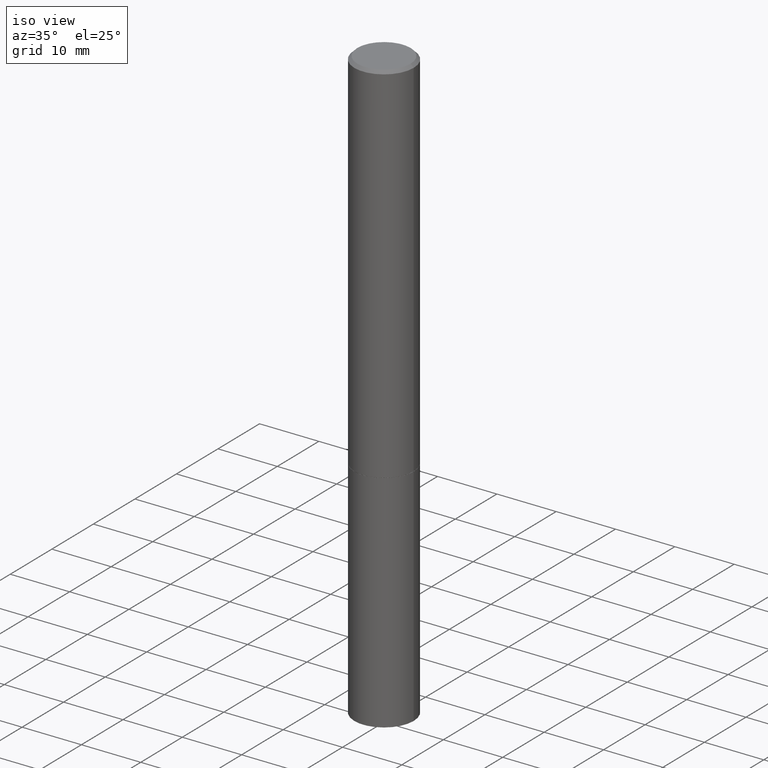
[diagram: clean part render]
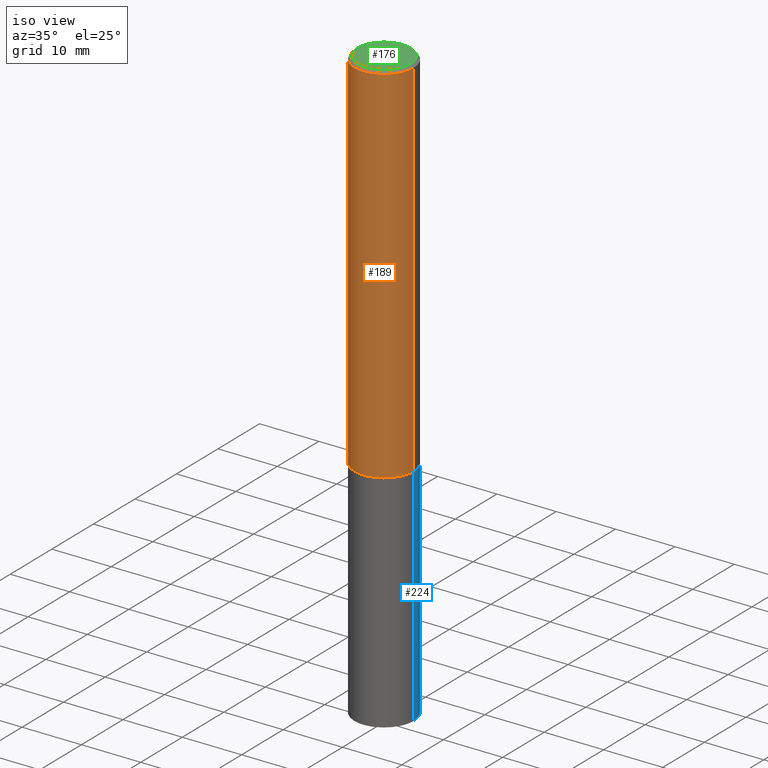
[diagram: same view with three faces highlighted in distinct colors, each labeled with its STEP entity id]
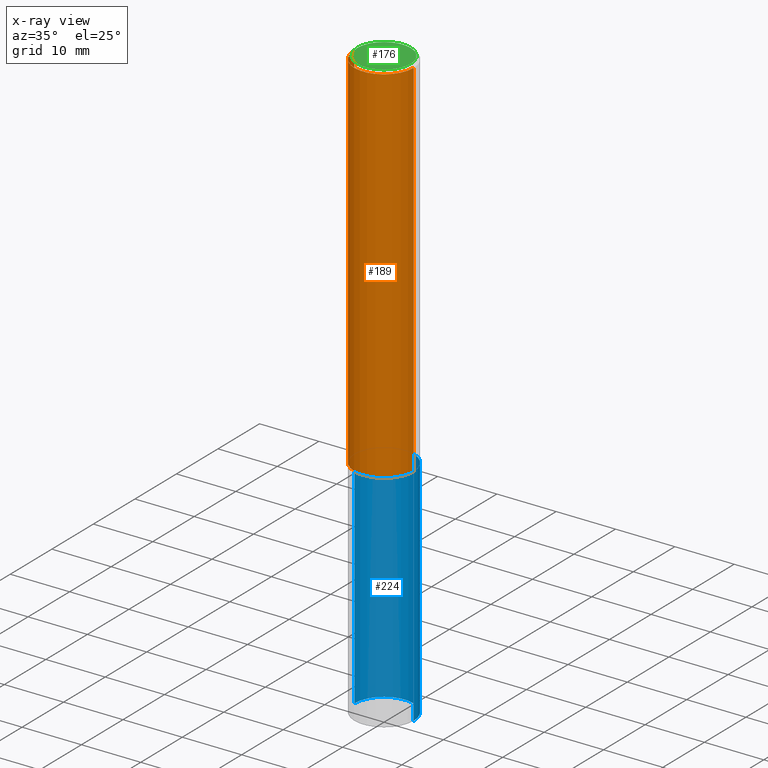
[diagram: x-ray of the same camera — body ghosted, the three highlighted faces saturated]
A machine part, iso view with three faces highlighted in distinct colors.
The next image is the same camera in x-ray (body ghosted, the three faces saturated) — at least one of them is partly hidden behind the body in this view.
Their STEP definitions:

[orange] entity #189 — the highlighted cylindrical surface (edge-blend (fillet) strip) has radius 5 mm, axis along (-0, 0, 1).
#4 = VERTEX_POINT ( 'NONE', #305 ) ;
#5 = EDGE_CURVE ( 'NONE', #160, #4, #47, .T. ) ;
#13 = ORIENTED_EDGE ( 'NONE', *, *, #5, .F. ) ;
#14 = CARTESIAN_POINT ( 'NONE',  ( -0.1968500000000000527, -2.895644097366364896E-15, -2.439899999999999736 ) ) ;
#21 = ORIENTED_EDGE ( 'NONE', *, *, #349, .T. ) ;
#38 = CARTESIAN_POINT ( 'NONE',  ( 4.890937612370278413E-31, -6.982962677686297772E-17, -0.02000000000000002123 ) ) ;
#47 = LINE ( 'NONE', #246, #281 ) ;
#57 = VERTEX_POINT ( 'NONE', #302 ) ;
#65 = DIRECTION ( 'NONE',  ( -2.445468806185136597E-29, 3.491481338843145583E-15, 1.000000000000000000 ) ) ;
#66 = ORIENTED_EDGE ( 'NONE', *, *, #127, .T. ) ;
#112 = AXIS2_PLACEMENT_3D ( 'NONE', #361, #165, #252 ) ;
#113 = VECTOR ( 'NONE', #245, 39.37007874015748143 ) ;
#114 = EDGE_CURVE ( 'NONE', #4, #57, #237, .T. ) ;
#123 = ORIENTED_EDGE ( 'NONE', *, *, #114, .F. ) ;
#127 = EDGE_CURVE ( 'NONE', #160, #287, #226, .T. ) ;
#140 = CARTESIAN_POINT ( 'NONE',  ( 0.1968499999999998307, -1.374596203102540425E-15, 9.598753983154291049E-30 ) ) ;
#160 = VERTEX_POINT ( 'NONE', #14 ) ;
#165 = DIRECTION ( 'NONE',  ( -2.445468806185136597E-29, 3.491481338843145583E-15, 1.000000000000000000 ) ) ;
#182 = AXIS2_PLACEMENT_3D ( 'NONE', #318, #65, #263 ) ;
#189 = ADVANCED_FACE ( 'NONE', ( #312 ), #219, .T. ) ;
#192 = CARTESIAN_POINT ( 'NONE',  ( 0.1968500000000000527, -9.893461521745931567E-15, -2.439899999999999736 ) ) ;
#202 = DIRECTION ( 'NONE',  ( 1.000000000000000000, -6.982962677686266711E-15, 0.000000000000000000 ) ) ;
#205 = AXIS2_PLACEMENT_3D ( 'NONE', #38, #356, #202 ) ;
#219 = CYLINDRICAL_SURFACE ( 'NONE', #112, 0.1968499999999998307 ) ;
#226 = CIRCLE ( 'NONE', #182, 0.1968500000000000527 ) ;
#237 = CIRCLE ( 'NONE', #205, 0.1968499999999996364 ) ;
#245 = DIRECTION ( 'NONE',  ( -2.445468806185136877E-29, 3.491481338843145188E-15, 1.000000000000000000 ) ) ;
#246 = CARTESIAN_POINT ( 'NONE',  ( -0.1968499999999998307, 1.398703375343756013E-15, -9.682923725166775270E-30 ) ) ;
#252 = DIRECTION ( 'NONE',  ( 1.000000000000000000, -6.982962677686266711E-15, 4.876176775795935793E-29 ) ) ;
#263 = DIRECTION ( 'NONE',  ( 1.000000000000000000, -6.982962677686266711E-15, 0.000000000000000000 ) ) ;
#281 = VECTOR ( 'NONE', #359, 39.37007874015748143 ) ;
#287 = VERTEX_POINT ( 'NONE', #192 ) ;
#302 = CARTESIAN_POINT ( 'NONE',  ( 0.1968499999999996364, -1.420318657638186558E-15, -0.02000000000000002123 ) ) ;
#305 = CARTESIAN_POINT ( 'NONE',  ( -0.1968499999999996364, 1.304766576325675944E-15, -0.02000000000000002123 ) ) ;
#312 = FACE_OUTER_BOUND ( 'NONE', #343, .T. ) ;
#318 = CARTESIAN_POINT ( 'NONE',  ( 5.966699340211114556E-29, -8.518865318643389958E-15, -2.439899999999999736 ) ) ;
#343 = EDGE_LOOP ( 'NONE', ( #13, #66, #21, #123 ) ) ;
#349 = EDGE_CURVE ( 'NONE', #287, #57, #358, .T. ) ;
#356 = DIRECTION ( 'NONE',  ( -2.445468806185136597E-29, 3.491481338843145583E-15, 1.000000000000000000 ) ) ;
#358 = LINE ( 'NONE', #140, #113 ) ;
#359 = DIRECTION ( 'NONE',  ( -2.445468806185136877E-29, 3.491481338843145188E-15, 1.000000000000000000 ) ) ;
#361 = CARTESIAN_POINT ( 'NONE',  ( 0.000000000000000000, 0.000000000000000000, 0.000000000000000000 ) ) ;

[blue] entity #224 — the highlighted cylindrical surface (edge-blend (fillet) strip) has radius 5 mm, axis along (-0, 0, 1).
#6 = CARTESIAN_POINT ( 'NONE',  ( 0.1968500000000000250, -1.512055823412800660E-14, -3.937000000000000277 ) ) ;
#33 = VERTEX_POINT ( 'NONE', #357 ) ;
#42 = LINE ( 'NONE', #348, #365 ) ;
#45 = EDGE_CURVE ( 'NONE', #72, #33, #107, .T. ) ;
#58 = EDGE_CURVE ( 'NONE', #156, #262, #42, .T. ) ;
#72 = VERTEX_POINT ( 'NONE', #6 ) ;
#77 = DIRECTION ( 'NONE',  ( -2.445468806185136877E-29, 3.491481338843145188E-15, 1.000000000000000000 ) ) ;
#81 = CARTESIAN_POINT ( 'NONE',  ( -0.1968500000000000250, -9.735456040160091980E-15, -2.440900000000000070 ) ) ;
#88 = EDGE_CURVE ( 'NONE', #72, #156, #137, .T. ) ;
#93 = DIRECTION ( 'NONE',  ( 1.000000000000000000, -6.982962677686267499E-15, 0.000000000000000000 ) ) ;
#107 = LINE ( 'NONE', #218, #258 ) ;
#132 = ORIENTED_EDGE ( 'NONE', *, *, #266, .F. ) ;
#137 = CIRCLE ( 'NONE', #199, 0.1968500000000000250 ) ;
#139 = AXIS2_PLACEMENT_3D ( 'NONE', #334, #363, #338 ) ;
#141 = EDGE_LOOP ( 'NONE', ( #213, #297, #132, #148 ) ) ;
#148 = ORIENTED_EDGE ( 'NONE', *, *, #45, .F. ) ;
#156 = VERTEX_POINT ( 'NONE', #353 ) ;
#169 = CYLINDRICAL_SURFACE ( 'NONE', #139, 0.1968500000000000250 ) ;
#191 = CIRCLE ( 'NONE', #301, 0.1968500000000000250 ) ;
#199 = AXIS2_PLACEMENT_3D ( 'NONE', #293, #232, #93 ) ;
#203 = DIRECTION ( 'NONE',  ( -2.445468806185136877E-29, 3.491481338843145188E-15, 1.000000000000000000 ) ) ;
#213 = ORIENTED_EDGE ( 'NONE', *, *, #88, .T. ) ;
#218 = CARTESIAN_POINT ( 'NONE',  ( 0.1968500000000000250, -1.374596203102541608E-15, 9.598753983154300858E-30 ) ) ;
#223 = CARTESIAN_POINT ( 'NONE',  ( 5.969144809017299038E-29, -8.522356799982232966E-15, -2.440900000000000070 ) ) ;
#224 = ADVANCED_FACE ( 'NONE', ( #272 ), #169, .T. ) ;
#232 = DIRECTION ( 'NONE',  ( -2.445468806185136597E-29, 3.491481338843145583E-15, 1.000000000000000000 ) ) ;
#258 = VECTOR ( 'NONE', #77, 39.37007874015748143 ) ;
#262 = VERTEX_POINT ( 'NONE', #81 ) ;
#266 = EDGE_CURVE ( 'NONE', #33, #262, #191, .T. ) ;
#272 = FACE_OUTER_BOUND ( 'NONE', #141, .T. ) ;
#283 = DIRECTION ( 'NONE',  ( -2.445468806185136597E-29, 3.491481338843145583E-15, 1.000000000000000000 ) ) ;
#293 = CARTESIAN_POINT ( 'NONE',  ( 9.627810689950883669E-29, -1.374596203102546341E-14, -3.937000000000000277 ) ) ;
#297 = ORIENTED_EDGE ( 'NONE', *, *, #58, .T. ) ;
#301 = AXIS2_PLACEMENT_3D ( 'NONE', #223, #283, #304 ) ;
#304 = DIRECTION ( 'NONE',  ( 1.000000000000000000, -6.982962677686262766E-15, 0.000000000000000000 ) ) ;
#334 = CARTESIAN_POINT ( 'NONE',  ( 0.000000000000000000, 0.000000000000000000, 0.000000000000000000 ) ) ;
#338 = DIRECTION ( 'NONE',  ( 1.000000000000000000, -6.982962677686265922E-15, 4.876176775795935793E-29 ) ) ;
#348 = CARTESIAN_POINT ( 'NONE',  ( -0.1968500000000000250, 1.398703375343757393E-15, -9.682923725166783677E-30 ) ) ;
#353 = CARTESIAN_POINT ( 'NONE',  ( -0.1968500000000000250, -9.735456040160091980E-15, -3.937000000000000277 ) ) ;
#357 = CARTESIAN_POINT ( 'NONE',  ( 0.1968500000000000250, -9.896953003084774574E-15, -2.440900000000000070 ) ) ;
#363 = DIRECTION ( 'NONE',  ( -2.445468806185136597E-29, 3.491481338843145583E-15, 1.000000000000000000 ) ) ;
#365 = VECTOR ( 'NONE', #203, 39.37007874015748143 ) ;

[green] entity #176 — the highlighted planar face has unit normal (0, -0, -1).
#24 = CARTESIAN_POINT ( 'NONE',  ( 1.234936949548813631E-15, 0.1768499999999996464, -6.153342185293588703E-16 ) ) ;
#35 = DIRECTION ( 'NONE',  ( -2.445468806185136597E-29, 3.491481338843145583E-15, 1.000000000000000000 ) ) ;
#40 = CARTESIAN_POINT ( 'NONE',  ( -1.043851414335219820E-46, 1.490343170380447200E-32, 4.268512490100411279E-18 ) ) ;
#70 = DIRECTION ( 'NONE',  ( -2.445468806185136597E-29, 3.491481338843145583E-15, 1.000000000000000000 ) ) ;
#78 = AXIS2_PLACEMENT_3D ( 'NONE', #100, #70, #299 ) ;
#100 = CARTESIAN_POINT ( 'NONE',  ( -1.043851414335219820E-46, 1.490343170380447200E-32, 4.268512490100411279E-18 ) ) ;
#108 = DIRECTION ( 'NONE',  ( -1.000000000000000000, 6.982962677686265922E-15, -4.876176775795935793E-29 ) ) ;
#116 = EDGE_CURVE ( 'NONE', #225, #261, #300, .T. ) ;
#133 = FACE_OUTER_BOUND ( 'NONE', #260, .T. ) ;
#166 = EDGE_CURVE ( 'NONE', #261, #225, #268, .T. ) ;
#170 = AXIS2_PLACEMENT_3D ( 'NONE', #24, #340, #108 ) ;
#176 = ADVANCED_FACE ( 'NONE', ( #133 ), #241, .F. ) ;
#190 = CARTESIAN_POINT ( 'NONE',  ( -0.1768499999999996464, 1.269851762937245083E-15, 4.268512490091652920E-18 ) ) ;
#210 = DIRECTION ( 'NONE',  ( 1.000000000000000000, -6.982962677686266711E-15, 4.875932113059887537E-29 ) ) ;
#225 = VERTEX_POINT ( 'NONE', #276 ) ;
#229 = ORIENTED_EDGE ( 'NONE', *, *, #116, .T. ) ;
#241 = PLANE ( 'NONE',  #170 ) ;
#260 = EDGE_LOOP ( 'NONE', ( #298, #229 ) ) ;
#261 = VERTEX_POINT ( 'NONE', #190 ) ;
#268 = CIRCLE ( 'NONE', #78, 0.1768499999999996464 ) ;
#276 = CARTESIAN_POINT ( 'NONE',  ( 0.1768499999999996464, -1.316798864272039577E-15, 4.268512490109333727E-18 ) ) ;
#298 = ORIENTED_EDGE ( 'NONE', *, *, #166, .T. ) ;
#299 = DIRECTION ( 'NONE',  ( 1.000000000000000000, -6.982962677686266711E-15, 4.875932113059887537E-29 ) ) ;
#300 = CIRCLE ( 'NONE', #344, 0.1768499999999996464 ) ;
#340 = DIRECTION ( 'NONE',  ( 2.438088387897960049E-29, -3.491481338843145188E-15, -1.000000000000000000 ) ) ;
#344 = AXIS2_PLACEMENT_3D ( 'NONE', #40, #35, #210 ) ;